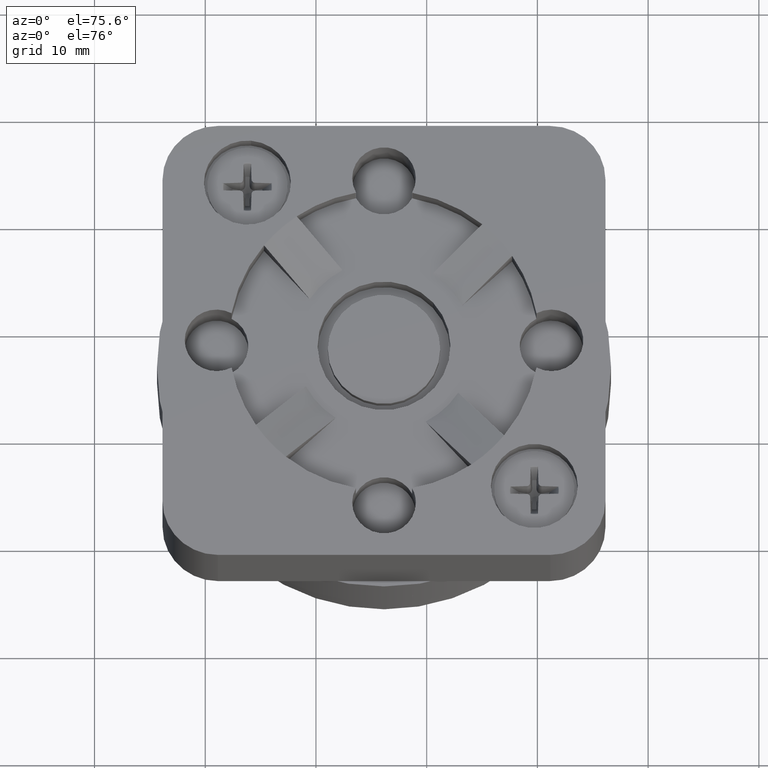
[diagram: clean part render]
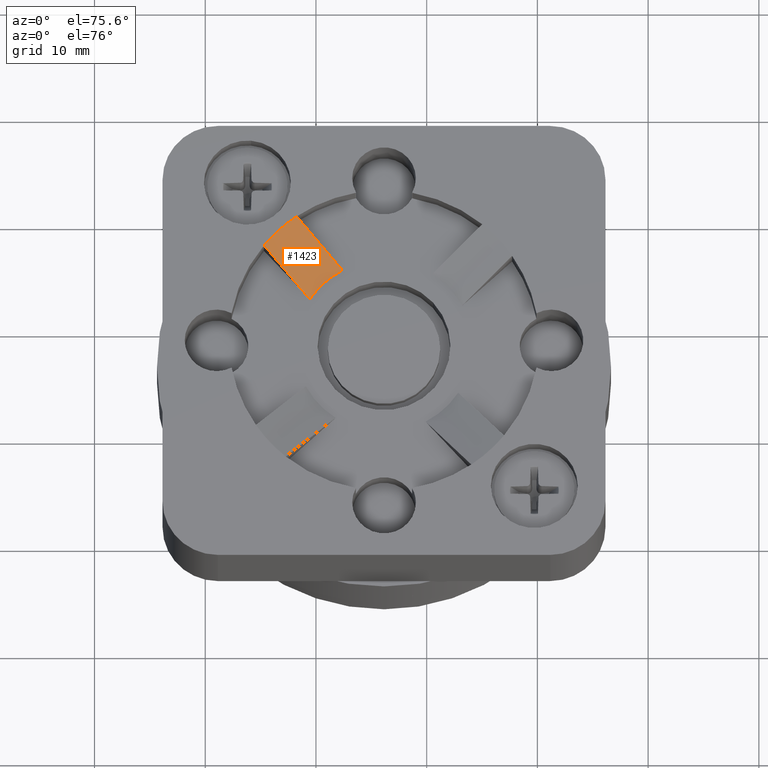
[diagram: same view with one face highlighted and labeled with its STEP entity id]
A machine part, auxiliary view. The second image highlights one B-rep face of the part: STEP entity #1423.
In plain terms, the highlighted conical surface has half-angle 71.565 deg.
Its self-contained STEP definition (entity closure, byte-faithful):
#526=CARTESIAN_POINT('',(-14.688572292405977,0.152192993442641,9.500000000000000));
#527=VERTEX_POINT('',#526);
#535=CARTESIAN_POINT('',(-11.739243858508143,2.854314713314225,9.500000000000000));
#536=VERTEX_POINT('',#535);
#537=CARTESIAN_POINT('',(-3.853483861351104,-8.713519538058748,9.500000000000000));
#538=DIRECTION('',(0.0,0.0,-1.0));
#539=DIRECTION('',(0.0,1.0,0.0));
#540=AXIS2_PLACEMENT_3D('',#537,#538,#539);
#541=CIRCLE('',#540,13.999999999999996);
#542=EDGE_CURVE('',#527,#536,#541,.T.);
#919=CARTESIAN_POINT('',(-7.611455854646179,-1.651108724631802,7.500000000000000));
#920=VERTEX_POINT('',#919);
#927=CARTESIAN_POINT('',(-10.560784288544012,-4.353230444503391,7.499999999999999));
#928=VERTEX_POINT('',#927);
#929=CARTESIAN_POINT('',(-3.853483861351104,-8.713519538058748,7.500000000000002));
#930=DIRECTION('',(0.0,0.0,-1.0));
#931=DIRECTION('',(0.0,1.0,0.0));
#932=AXIS2_PLACEMENT_3D('',#929,#930,#931);
#933=CIRCLE('',#932,7.999999999999997);
#934=EDGE_CURVE('',#928,#920,#933,.T.);
#1170=CARTESIAN_POINT('',(-7.611455854646182,-1.651108724631800,7.500000000000002));
#1171=CARTESIAN_POINT('',(-9.112469674228693,-0.012772929019057,8.217140347270808));
#1172=CARTESIAN_POINT('',(-11.739243858508150,2.854314713314232,9.500000000000002));
#1180=(BOUNDED_CURVE()B_SPLINE_CURVE(2,(#1170,#1171,#1172),.UNSPECIFIED.,.F.,.U.)B_SPLINE_CURVE_WITH_KNOTS((3,3),(0.0,0.642943018997191),.UNSPECIFIED.)CURVE()GEOMETRIC_REPRESENTATION_ITEM()RATIONAL_B_SPLINE_CURVE((1.0,1.040957316610002,1.0))REPRESENTATION_ITEM(''));
#1181=EDGE_CURVE('',#920,#536,#1180,.T.);
#1239=CARTESIAN_POINT('',(-14.688572292405983,0.152192993442648,9.500000000000000));
#1240=CARTESIAN_POINT('',(-12.061798108131935,-2.714894648884737,8.217140347273421));
#1241=CARTESIAN_POINT('',(-10.560784288544012,-4.353230444503391,7.500000000000000));
#1249=(BOUNDED_CURVE()B_SPLINE_CURVE(2,(#1239,#1240,#1241),.UNSPECIFIED.,.F.,.U.)B_SPLINE_CURVE_WITH_KNOTS((3,3),(0.0,0.642943018997191),.UNSPECIFIED.)CURVE()GEOMETRIC_REPRESENTATION_ITEM()RATIONAL_B_SPLINE_CURVE((1.0,1.040957316608309,1.0))REPRESENTATION_ITEM(''));
#1250=EDGE_CURVE('',#527,#928,#1249,.T.);
#1412=CARTESIAN_POINT('',(-3.853483861351104,-8.713519538058748,8.500000000000002));
#1413=DIRECTION('',(0.0,2.182950E-016,1.0));
#1414=DIRECTION('',(0.0,1.0,0.0));
#1415=AXIS2_PLACEMENT_3D('',#1412,#1413,#1414);
#1416=CONICAL_SURFACE('',#1415,11.0,71.565051177078004);
#1417=ORIENTED_EDGE('',*,*,#1181,.T.);
#1418=ORIENTED_EDGE('',*,*,#542,.F.);
#1419=ORIENTED_EDGE('',*,*,#1250,.T.);
#1420=ORIENTED_EDGE('',*,*,#934,.T.);
#1421=EDGE_LOOP('',(#1417,#1418,#1419,#1420));
#1422=FACE_OUTER_BOUND('',#1421,.T.);
#1423=ADVANCED_FACE('',(#1422),#1416,.F.);